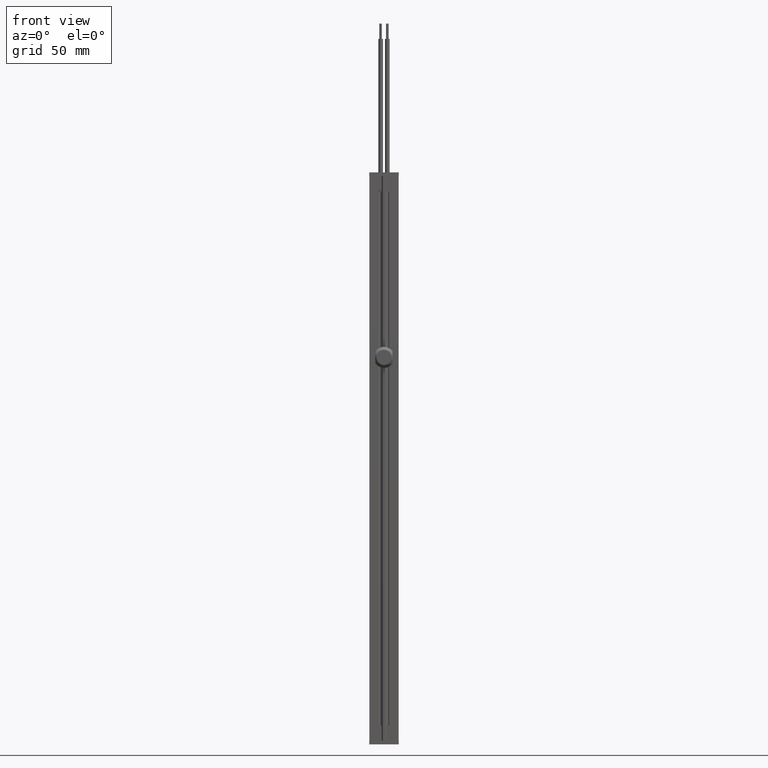
[diagram: clean part render]
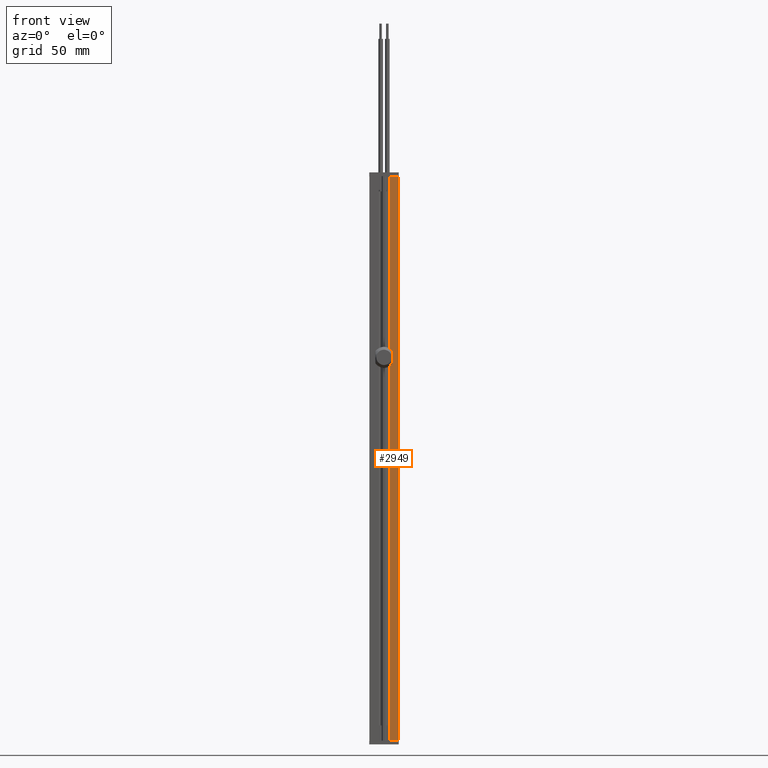
[diagram: same view with one face highlighted and labeled with its STEP entity id]
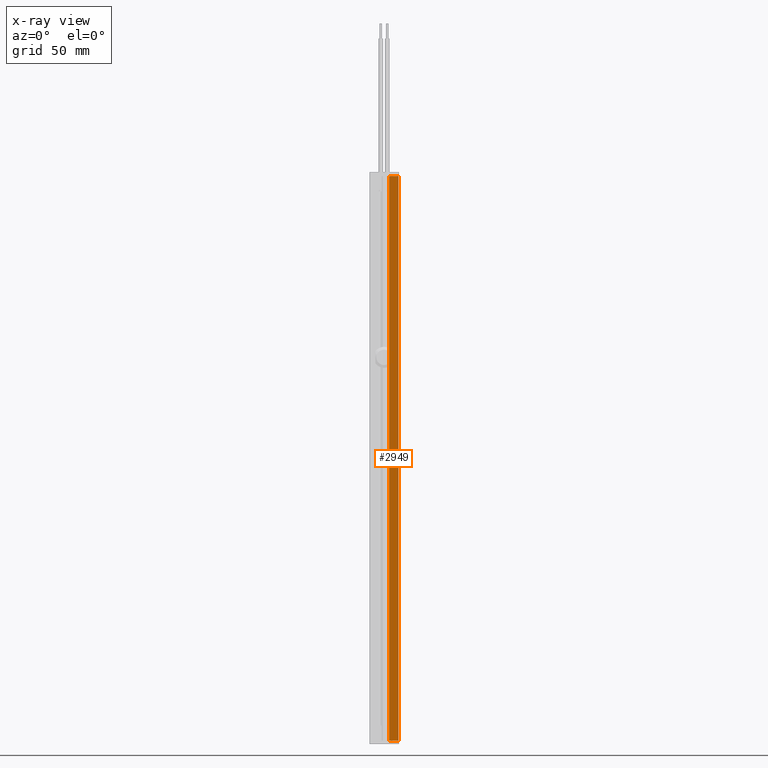
[diagram: x-ray of the same camera — body ghosted, the highlighted face saturated]
A machine part, front view. The second image highlights one B-rep face of the part: STEP entity #2949.
The next image is the same camera in x-ray: the body ghosted, the highlighted face saturated — about 0% of this face is hidden behind the body in this view.
In plain terms, the highlighted planar face has unit normal (-0, 1, 0).
Its self-contained STEP definition (entity closure, byte-faithful):
#63 = VERTEX_POINT ( 'NONE', #3130 ) ;
#398 = ORIENTED_EDGE ( 'NONE', *, *, #6548, .F. ) ;
#557 = LINE ( 'NONE', #7636, #4096 ) ;
#924 = CARTESIAN_POINT ( 'NONE',  ( -7.700000000000001954, 8.500000000000000000, -148.0000000000000000 ) ) ;
#934 = VERTEX_POINT ( 'NONE', #12724 ) ;
#962 = ORIENTED_EDGE ( 'NONE', *, *, #9070, .T. ) ;
#1284 = CARTESIAN_POINT ( 'NONE',  ( -7.700000000000001954, 8.500000000000000000, 148.0000000000000000 ) ) ;
#1892 = CARTESIAN_POINT ( 'NONE',  ( -7.700000000000001954, 8.500000000000000000, 148.0000000000000000 ) ) ;
#2400 = CARTESIAN_POINT ( 'NONE',  ( -7.700000000000001954, 8.500000000000000000, 148.0000000000000000 ) ) ;
#2852 = AXIS2_PLACEMENT_3D ( 'NONE', #1284, #14487, #10972 ) ;
#2949 = ADVANCED_FACE ( 'NONE', ( #7467 ), #4828, .F. ) ;
#3083 = VERTEX_POINT ( 'NONE', #8849 ) ;
#3125 = DIRECTION ( 'NONE',  ( -1.000000000000000000, -0.000000000000000000, -0.000000000000000000 ) ) ;
#3130 = CARTESIAN_POINT ( 'NONE',  ( -7.700000000000001954, 8.500000000000000000, -148.0000000000000000 ) ) ;
#3264 = ORIENTED_EDGE ( 'NONE', *, *, #9946, .F. ) ;
#3912 = CARTESIAN_POINT ( 'NONE',  ( -7.700000000000001954, 8.500000000000000000, 148.0000000000000000 ) ) ;
#4096 = VECTOR ( 'NONE', #10060, 1000.000000000000000 ) ;
#4828 = PLANE ( 'NONE',  #2852 ) ;
#5151 = VECTOR ( 'NONE', #3125, 1000.000000000000000 ) ;
#6548 = EDGE_CURVE ( 'NONE', #13135, #63, #12909, .T. ) ;
#7245 = DIRECTION ( 'NONE',  ( -1.000000000000000000, -0.000000000000000000, -0.000000000000000000 ) ) ;
#7467 = FACE_OUTER_BOUND ( 'NONE', #14248, .T. ) ;
#7615 = ORIENTED_EDGE ( 'NONE', *, *, #10856, .T. ) ;
#7636 = CARTESIAN_POINT ( 'NONE',  ( -2.699999999999999289, 8.500000000000000000, 148.0000000000000000 ) ) ;
#8849 = CARTESIAN_POINT ( 'NONE',  ( -2.699999999999999289, 8.500000000000000000, 148.0000000000000000 ) ) ;
#9070 = EDGE_CURVE ( 'NONE', #3083, #934, #557, .T. ) ;
#9342 = VECTOR ( 'NONE', #7245, 1000.000000000000000 ) ;
#9946 = EDGE_CURVE ( 'NONE', #3083, #13135, #13391, .T. ) ;
#10060 = DIRECTION ( 'NONE',  ( -0.000000000000000000, -0.000000000000000000, -1.000000000000000000 ) ) ;
#10856 = EDGE_CURVE ( 'NONE', #934, #63, #11543, .T. ) ;
#10972 = DIRECTION ( 'NONE',  ( 0.000000000000000000, -0.000000000000000000, -1.000000000000000000 ) ) ;
#11543 = LINE ( 'NONE', #924, #5151 ) ;
#12269 = DIRECTION ( 'NONE',  ( -0.000000000000000000, -0.000000000000000000, -1.000000000000000000 ) ) ;
#12555 = VECTOR ( 'NONE', #12269, 1000.000000000000000 ) ;
#12724 = CARTESIAN_POINT ( 'NONE',  ( -2.699999999999999289, 8.500000000000000000, -148.0000000000000000 ) ) ;
#12909 = LINE ( 'NONE', #3912, #12555 ) ;
#13135 = VERTEX_POINT ( 'NONE', #1892 ) ;
#13391 = LINE ( 'NONE', #2400, #9342 ) ;
#14248 = EDGE_LOOP ( 'NONE', ( #7615, #398, #3264, #962 ) ) ;
#14487 = DIRECTION ( 'NONE',  ( 0.000000000000000000, -1.000000000000000000, 0.000000000000000000 ) ) ;